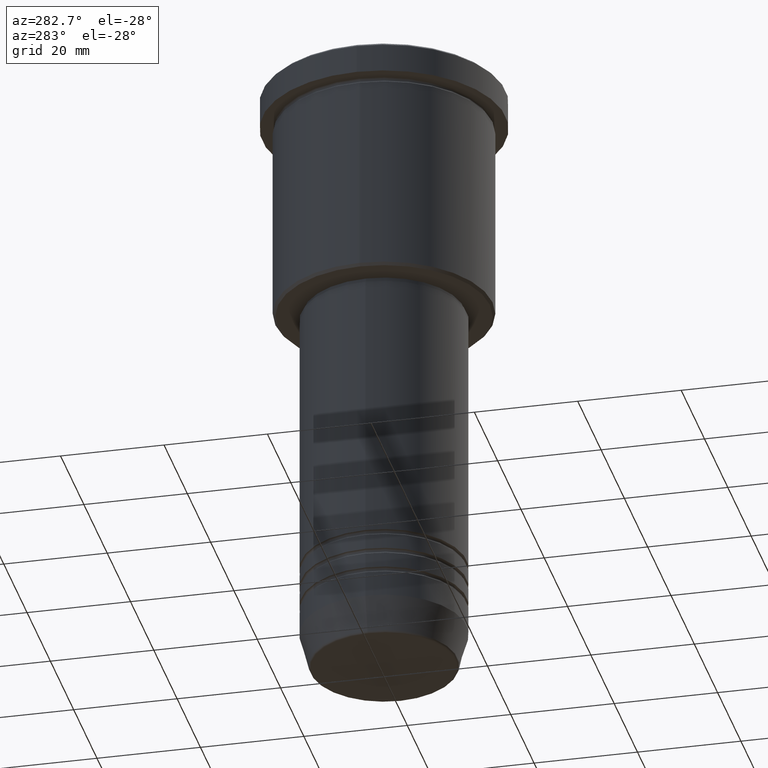
[diagram: clean part render]
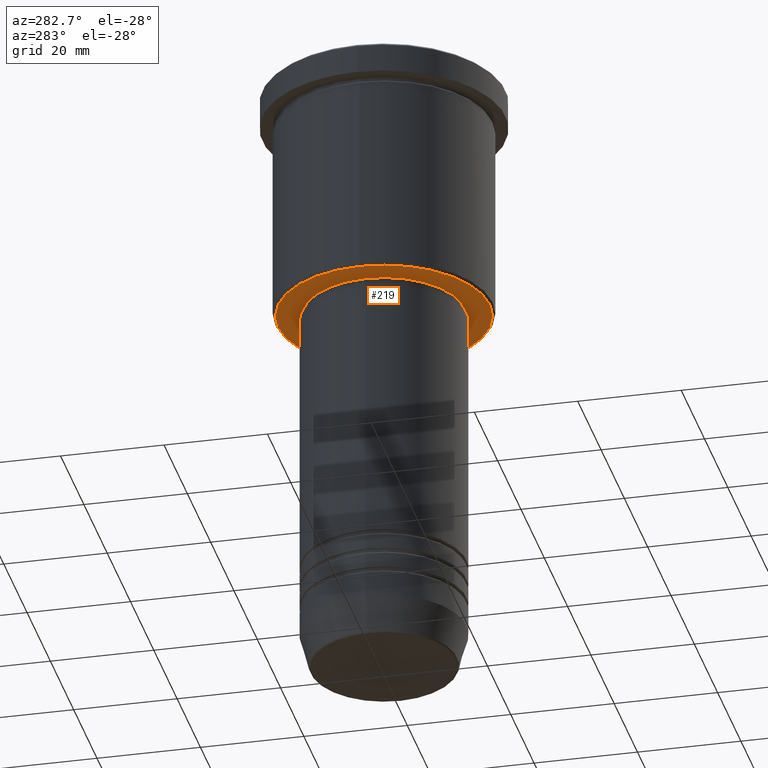
[diagram: same view with one face highlighted and labeled with its STEP entity id]
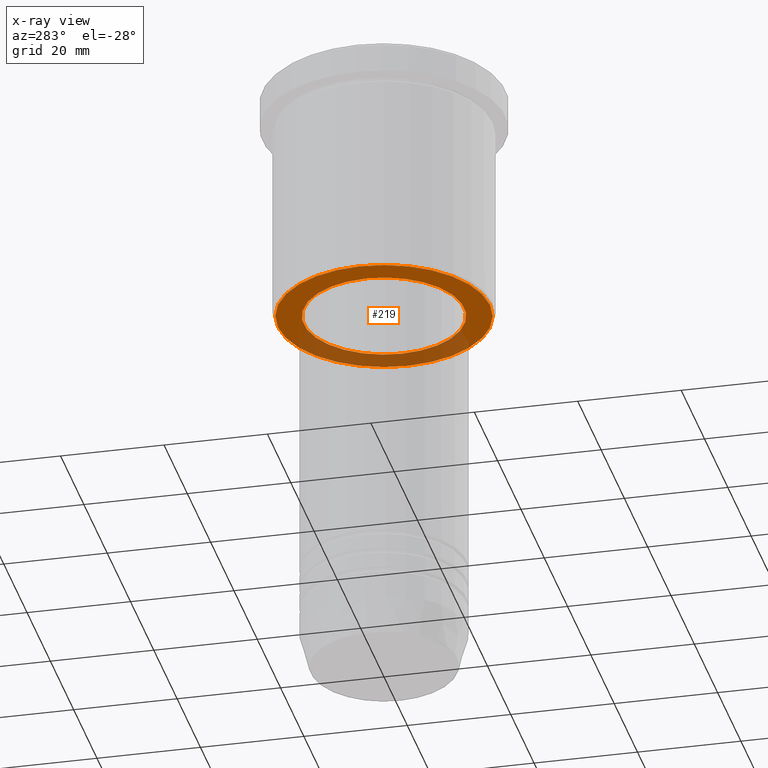
[diagram: x-ray of the same camera — body ghosted, the highlighted face saturated]
A machine part, auxiliary view. The second image highlights one B-rep face of the part: STEP entity #219.
The next image is the same camera in x-ray: the body ghosted, the highlighted face saturated — about 33% of this face is hidden behind the body in this view.
In plain terms, the highlighted planar face has unit normal (0, 0, -1).
Its self-contained STEP definition (entity closure, byte-faithful):
#56 = CARTESIAN_POINT ( 'NONE',  ( 0.000000000000000000, 0.000000000000000000, -46.00000000000000711 ) ) ;
#68 = CARTESIAN_POINT ( 'NONE',  ( 20.49999999999998934, 0.000000000000000000, -46.00000000000000711 ) ) ;
#73 = DIRECTION ( 'NONE',  ( -0.000000000000000000, -0.000000000000000000, 1.000000000000000000 ) ) ;
#104 = CARTESIAN_POINT ( 'NONE',  ( 15.50000000000000000, 0.000000000000000000, -46.00000000000000711 ) ) ;
#107 = DIRECTION ( 'NONE',  ( 1.000000000000000000, 0.000000000000000000, 0.000000000000000000 ) ) ;
#138 = DIRECTION ( 'NONE',  ( -1.000000000000000000, 0.000000000000000000, -0.000000000000000000 ) ) ;
#175 = EDGE_CURVE ( 'NONE', #260, #367, #1134, .T. ) ;
#182 = AXIS2_PLACEMENT_3D ( 'NONE', #725, #73, #349 ) ;
#196 = EDGE_CURVE ( 'NONE', #367, #260, #237, .T. ) ;
#201 = AXIS2_PLACEMENT_3D ( 'NONE', #56, #867, #508 ) ;
#219 = ADVANCED_FACE ( 'NONE', ( #783, #960 ), #619, .T. ) ;
#237 = CIRCLE ( 'NONE', #201, 20.49999999999998934 ) ;
#260 = VERTEX_POINT ( 'NONE', #645 ) ;
#264 = DIRECTION ( 'NONE',  ( -1.000000000000000000, 0.000000000000000000, 0.000000000000000000 ) ) ;
#300 = CIRCLE ( 'NONE', #802, 15.50000000000000000 ) ;
#349 = DIRECTION ( 'NONE',  ( 1.000000000000000000, 0.000000000000000000, 0.000000000000000000 ) ) ;
#367 = VERTEX_POINT ( 'NONE', #68 ) ;
#425 = DIRECTION ( 'NONE',  ( 0.000000000000000000, 0.000000000000000000, -1.000000000000000000 ) ) ;
#437 = EDGE_CURVE ( 'NONE', #556, #444, #300, .T. ) ;
#444 = VERTEX_POINT ( 'NONE', #104 ) ;
#508 = DIRECTION ( 'NONE',  ( -1.000000000000000000, 0.000000000000000000, 0.000000000000000000 ) ) ;
#515 = EDGE_LOOP ( 'NONE', ( #583, #532 ) ) ;
#529 = AXIS2_PLACEMENT_3D ( 'NONE', #861, #425, #264 ) ;
#532 = ORIENTED_EDGE ( 'NONE', *, *, #437, .T. ) ;
#556 = VERTEX_POINT ( 'NONE', #696 ) ;
#583 = ORIENTED_EDGE ( 'NONE', *, *, #705, .T. ) ;
#619 = PLANE ( 'NONE',  #973 ) ;
#645 = CARTESIAN_POINT ( 'NONE',  ( -20.49999999999998934, 2.541142108230757480E-15, -46.00000000000000711 ) ) ;
#696 = CARTESIAN_POINT ( 'NONE',  ( -15.50000000000000000, 1.898202538678397557E-15, -46.00000000000000711 ) ) ;
#705 = EDGE_CURVE ( 'NONE', #444, #556, #804, .T. ) ;
#724 = EDGE_LOOP ( 'NONE', ( #1165, #1163 ) ) ;
#725 = CARTESIAN_POINT ( 'NONE',  ( 0.000000000000000000, 0.000000000000000000, -46.00000000000000711 ) ) ;
#783 = FACE_OUTER_BOUND ( 'NONE', #724, .T. ) ;
#802 = AXIS2_PLACEMENT_3D ( 'NONE', #933, #929, #107 ) ;
#804 = CIRCLE ( 'NONE', #182, 15.50000000000000000 ) ;
#861 = CARTESIAN_POINT ( 'NONE',  ( 0.000000000000000000, 0.000000000000000000, -46.00000000000000711 ) ) ;
#867 = DIRECTION ( 'NONE',  ( 0.000000000000000000, 0.000000000000000000, -1.000000000000000000 ) ) ;
#929 = DIRECTION ( 'NONE',  ( -0.000000000000000000, -0.000000000000000000, 1.000000000000000000 ) ) ;
#933 = CARTESIAN_POINT ( 'NONE',  ( 0.000000000000000000, 0.000000000000000000, -46.00000000000000711 ) ) ;
#960 = FACE_BOUND ( 'NONE', #515, .T. ) ;
#973 = AXIS2_PLACEMENT_3D ( 'NONE', #981, #1131, #138 ) ;
#981 = CARTESIAN_POINT ( 'NONE',  ( 0.000000000000000000, 21.00000000000000000, -46.00000000000000711 ) ) ;
#1131 = DIRECTION ( 'NONE',  ( 0.000000000000000000, 0.000000000000000000, -1.000000000000000000 ) ) ;
#1134 = CIRCLE ( 'NONE', #529, 20.49999999999998934 ) ;
#1163 = ORIENTED_EDGE ( 'NONE', *, *, #175, .T. ) ;
#1165 = ORIENTED_EDGE ( 'NONE', *, *, #196, .T. ) ;